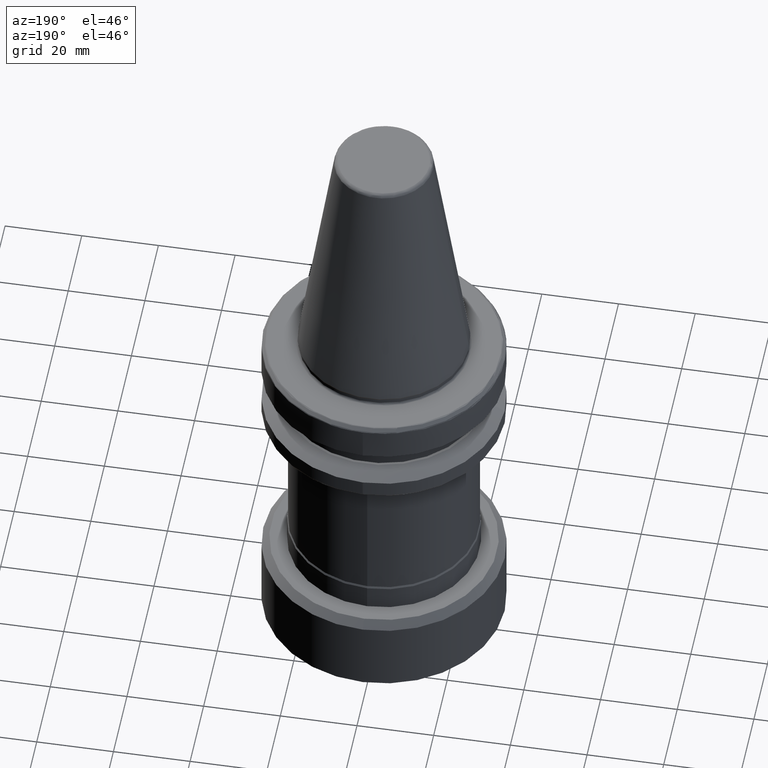
[diagram: clean part render]
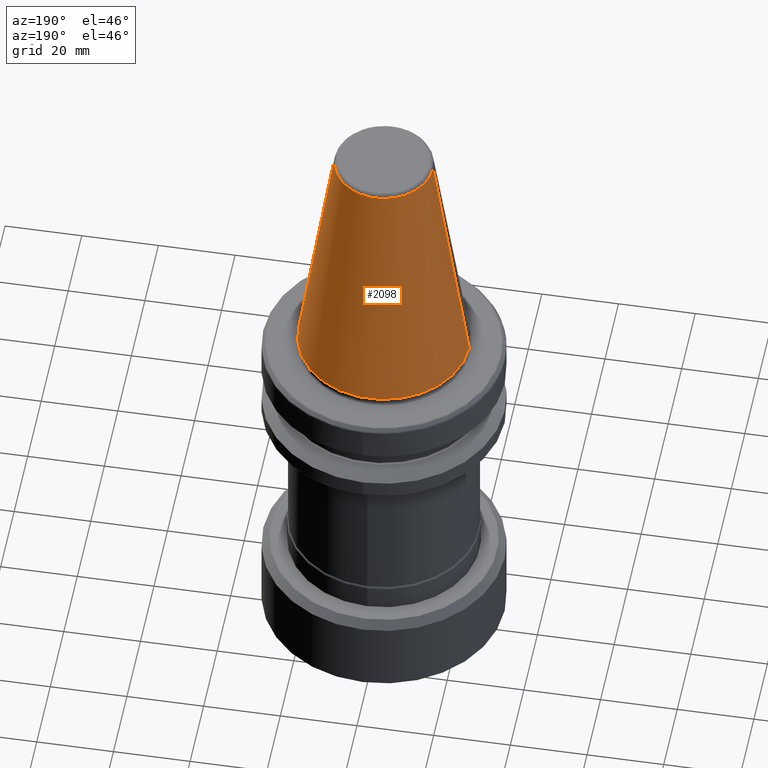
[diagram: same view with one face highlighted and labeled with its STEP entity id]
A machine part, auxiliary view. The second image highlights one B-rep face of the part: STEP entity #2098.
In plain terms, the highlighted conical surface has half-angle 8.297 deg.
Its self-contained STEP definition (entity closure, byte-faithful):
#47 = EDGE_CURVE ( 'NONE', #1650, #2399, #1559, .T. ) ;
#140 = CARTESIAN_POINT ( 'NONE',  ( -12.81219950700000300, 0.0000000000000000000, 64.54430822700000200 ) ) ;
#153 = CARTESIAN_POINT ( 'NONE',  ( 12.81219950696690200, -3.941739068562204500E-009, 64.54430822700854300 ) ) ;
#182 = DIRECTION ( 'NONE',  ( -0.0000000000000000000, -0.0000000000000000000, 1.000000000000000000 ) ) ;
#191 = CARTESIAN_POINT ( 'NONE',  ( 22.22499999999999800, 2.721777511104992100E-015, 0.0000000000000000000 ) ) ;
#225 = CARTESIAN_POINT ( 'NONE',  ( 0.0000000000000000000, 0.0000000000000000000, 0.0000000000000000000 ) ) ;
#242 = DIRECTION ( 'NONE',  ( -1.000000000000000000, 0.0000000000000000000, 0.0000000000000000000 ) ) ;
#295 = ORIENTED_EDGE ( 'NONE', *, *, #1849, .T. ) ;
#399 = ORIENTED_EDGE ( 'NONE', *, *, #47, .T. ) ;
#475 = CIRCLE ( 'NONE', #1512, 12.81219950700000300 ) ;
#578 = EDGE_CURVE ( 'NONE', #1430, #2399, #3013, .T. ) ;
#667 = VERTEX_POINT ( 'NONE', #153 ) ;
#826 = AXIS2_PLACEMENT_3D ( 'NONE', #225, #948, #3175 ) ;
#899 = EDGE_LOOP ( 'NONE', ( #2143, #295, #399, #1677 ) ) ;
#948 = DIRECTION ( 'NONE',  ( 0.0000000000000000000, 0.0000000000000000000, 1.000000000000000000 ) ) ;
#1047 = CARTESIAN_POINT ( 'NONE',  ( 0.0000000000000000000, 0.0000000000000000000, 64.54430822700000200 ) ) ;
#1144 = LINE ( 'NONE', #1779, #2563 ) ;
#1319 = DIRECTION ( 'NONE',  ( 0.0000000000000000000, 0.0000000000000000000, -1.000000000000000000 ) ) ;
#1382 = EDGE_CURVE ( 'NONE', #667, #1430, #475, .T. ) ;
#1430 = VERTEX_POINT ( 'NONE', #1501 ) ;
#1501 = CARTESIAN_POINT ( 'NONE',  ( -12.81219950696881500, -1.150453881886354600E-009, 64.54430822699541200 ) ) ;
#1512 = AXIS2_PLACEMENT_3D ( 'NONE', #1798, #182, #2069 ) ;
#1559 = CIRCLE ( 'NONE', #826, 22.22499999999999800 ) ;
#1599 = VECTOR ( 'NONE', #2028, 1000.000000000000000 ) ;
#1650 = VERTEX_POINT ( 'NONE', #191 ) ;
#1677 = ORIENTED_EDGE ( 'NONE', *, *, #578, .F. ) ;
#1779 = CARTESIAN_POINT ( 'NONE',  ( 12.81219950700000300, 1.569041911628485000E-015, 64.54430822700000200 ) ) ;
#1798 = CARTESIAN_POINT ( 'NONE',  ( 0.0000000000000000000, 0.0000000000000000000, 64.54430822699997300 ) ) ;
#1849 = EDGE_CURVE ( 'NONE', #667, #1650, #1144, .T. ) ;
#2028 = DIRECTION ( 'NONE',  ( -0.1443082272688266400, 0.0000000000000000000, -0.9895327864919528600 ) ) ;
#2069 = DIRECTION ( 'NONE',  ( -1.000000000000000000, 8.881784197001252300E-016, 2.166339635943424900E-015 ) ) ;
#2070 = FACE_OUTER_BOUND ( 'NONE', #899, .T. ) ;
#2098 = ADVANCED_FACE ( 'NONE', ( #2070 ), #2692, .T. ) ;
#2143 = ORIENTED_EDGE ( 'NONE', *, *, #1382, .F. ) ;
#2280 = AXIS2_PLACEMENT_3D ( 'NONE', #1047, #1319, #242 ) ;
#2399 = VERTEX_POINT ( 'NONE', #2612 ) ;
#2563 = VECTOR ( 'NONE', #3373, 1000.000000000000000 ) ;
#2612 = CARTESIAN_POINT ( 'NONE',  ( -22.22499999999999800, 0.0000000000000000000, 0.0000000000000000000 ) ) ;
#2692 = CONICAL_SURFACE ( 'NONE', #2280, 12.81219950700000300, 0.1448138465489547400 ) ;
#3013 = LINE ( 'NONE', #140, #1599 ) ;
#3175 = DIRECTION ( 'NONE',  ( 1.000000000000000000, 0.0000000000000000000, 0.0000000000000000000 ) ) ;
#3373 = DIRECTION ( 'NONE',  ( 0.1443082272688266400, 1.767266086153973400E-017, -0.9895327864919528600 ) ) ;